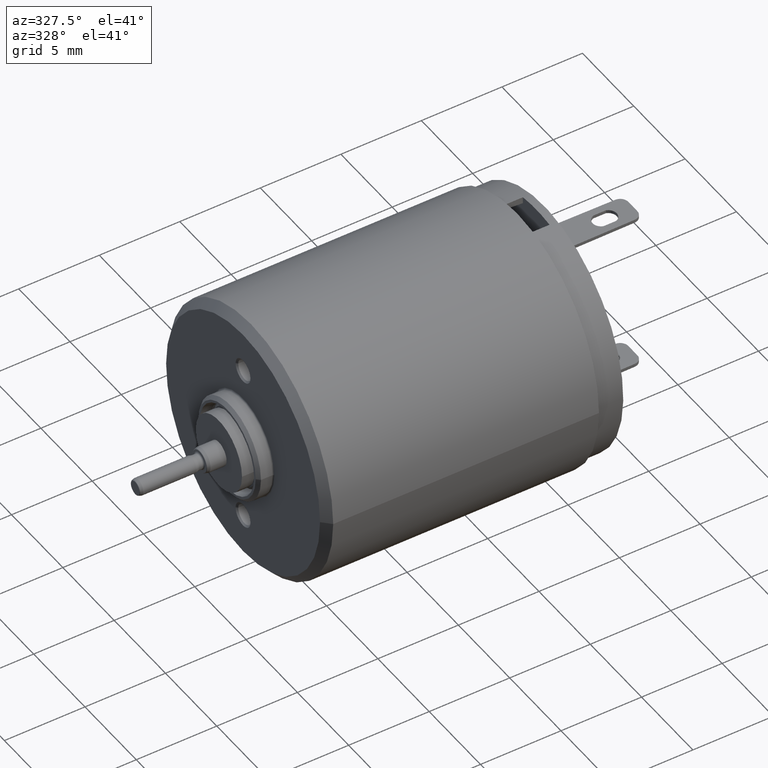
[diagram: clean part render]
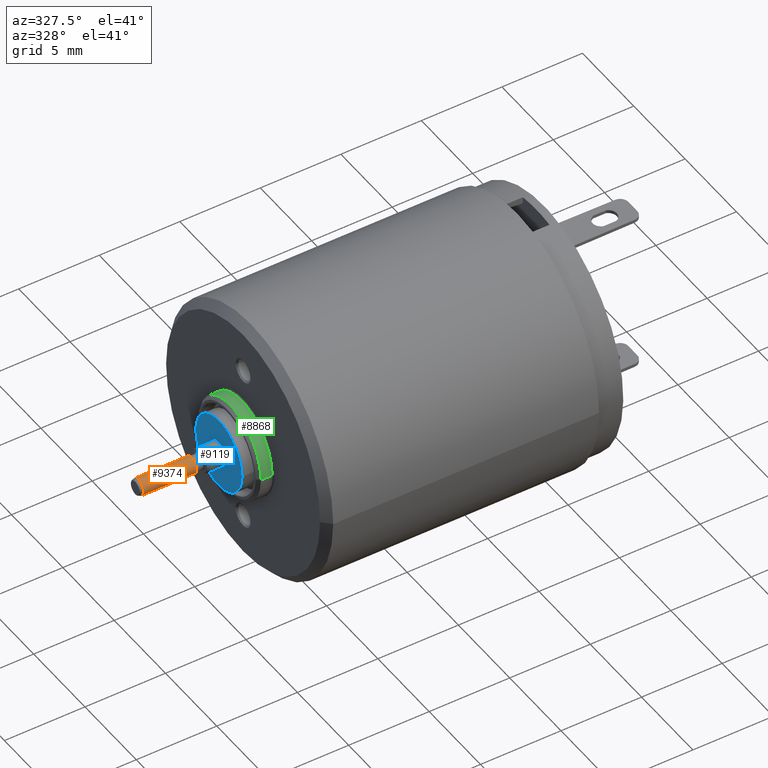
[diagram: same view with three faces highlighted in distinct colors, each labeled with its STEP entity id]
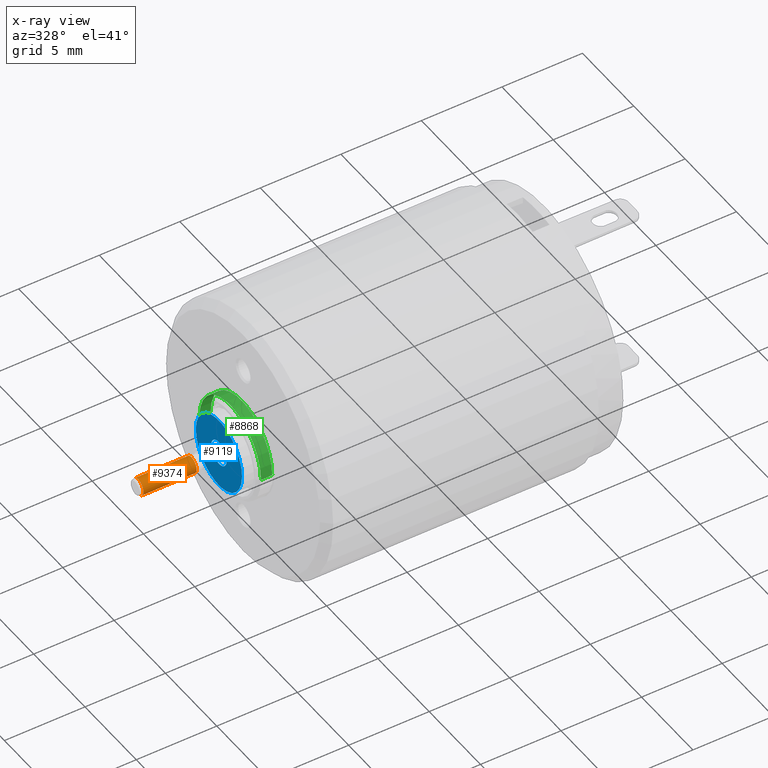
[diagram: x-ray of the same camera — body ghosted, the three highlighted faces saturated]
A machine part, auxiliary view with three faces highlighted in distinct colors.
The next image is the same camera in x-ray (body ghosted, the three faces saturated) — at least one of them is partly hidden behind the body in this view.
Their STEP definitions:

[orange] entity #9374 — the highlighted cylindrical surface (edge-blend (fillet) strip) has radius 0.5 mm, axis along (-1, 0, 0).
#1496=CARTESIAN_POINT('',(-2.02E1,1.472025452584E-14,0.E0));
#1497=DIRECTION('',(1.E0,0.E0,0.E0));
#1498=DIRECTION('',(0.E0,5.E-1,8.660254037844E-1));
#1499=AXIS2_PLACEMENT_3D('',#1496,#1497,#1498);
#1501=DIRECTION('',(1.E0,3.212839903136E-14,5.381906026598E-14));
#1502=VECTOR('',#1501,3.302672052690E0);
#1503=CARTESIAN_POINT('',(-2.350267205269E1,-2.5E-1,-4.330127018922E-1));
#1504=LINE('',#1503,#1502);
#1510=DIRECTION('',(-1.E0,3.193510759068E-14,5.133148346418E-14));
#1511=VECTOR('',#1510,3.302672052690E0);
#1512=CARTESIAN_POINT('',(-2.02E1,2.499999999999E-1,4.330127018921E-1));
#1513=LINE('',#1512,#1511);
#1529=CARTESIAN_POINT('',(-2.350267205269E1,1.512471520155E-14,0.E0));
#1530=DIRECTION('',(1.E0,0.E0,0.E0));
#1531=DIRECTION('',(0.E0,5.E-1,8.660254037844E-1));
#1532=AXIS2_PLACEMENT_3D('',#1529,#1530,#1531);
#6860=CARTESIAN_POINT('',(-2.02E1,-2.5E-1,-4.330127018922E-1));
#6861=CARTESIAN_POINT('',(-2.02E1,2.5E-1,4.330127018922E-1));
#6862=VERTEX_POINT('',#6860);
#6863=VERTEX_POINT('',#6861);
#6864=CARTESIAN_POINT('',(-2.350267205269E1,2.5E-1,4.330127018923E-1));
#6865=CARTESIAN_POINT('',(-2.350267205269E1,-2.5E-1,-4.330127018923E-1));
#6866=VERTEX_POINT('',#6864);
#6867=VERTEX_POINT('',#6865);
#9360=CARTESIAN_POINT('',(-2.013394655895E1,1.471216531232E-14,0.E0));
#9361=DIRECTION('',(-1.E0,0.E0,0.E0));
#9362=DIRECTION('',(0.E0,5.E-1,8.660254037844E-1));
#9363=AXIS2_PLACEMENT_3D('',#9360,#9361,#9362);
#9364=CYLINDRICAL_SURFACE('',#9363,5.E-1);
#9366=ORIENTED_EDGE('',*,*,#9365,.F.);
#9368=ORIENTED_EDGE('',*,*,#9367,.F.);
#9370=ORIENTED_EDGE('',*,*,#9369,.F.);
#9371=ORIENTED_EDGE('',*,*,#9353,.T.);
#9372=EDGE_LOOP('',(#9366,#9368,#9370,#9371));
#9373=FACE_OUTER_BOUND('',#9372,.F.);
#9374=ADVANCED_FACE('',(#9373),#9364,.T.);
#1500=CIRCLE('',#1499,5.E-1);
#1533=CIRCLE('',#1532,5.E-1);
#9353=EDGE_CURVE('',#6863,#6862,#1500,.T.);
#9365=EDGE_CURVE('',#6867,#6862,#1504,.T.);
#9367=EDGE_CURVE('',#6866,#6867,#1533,.T.);
#9369=EDGE_CURVE('',#6863,#6866,#1513,.T.);

[blue] entity #9119 — the highlighted planar face has unit normal (1, 0, 0).
#1324=CARTESIAN_POINT('',(-1.85E1,1.451206456989E-14,0.E0));
#1325=DIRECTION('',(1.E0,0.E0,0.E0));
#1326=DIRECTION('',(0.E0,1.E0,0.E0));
#1327=AXIS2_PLACEMENT_3D('',#1324,#1325,#1326);
#1329=CARTESIAN_POINT('',(-1.85E1,1.451206456989E-14,0.E0));
#1330=DIRECTION('',(1.E0,0.E0,0.E0));
#1331=DIRECTION('',(0.E0,-1.E0,0.E0));
#1332=AXIS2_PLACEMENT_3D('',#1329,#1330,#1331);
#1334=CARTESIAN_POINT('',(-1.85E1,1.451206456997E-14,0.E0));
#1335=DIRECTION('',(-1.E0,0.E0,0.E0));
#1336=DIRECTION('',(0.E0,-5.E-1,-8.660254037844E-1));
#1337=AXIS2_PLACEMENT_3D('',#1334,#1335,#1336);
#1339=CARTESIAN_POINT('',(-1.85E1,1.451206456997E-14,0.E0));
#1340=DIRECTION('',(-1.E0,0.E0,0.E0));
#1341=DIRECTION('',(0.E0,5.000000000001E-1,8.660254037844E-1));
#1342=AXIS2_PLACEMENT_3D('',#1339,#1340,#1341);
#6820=CARTESIAN_POINT('',(-1.85E1,-2.25E0,0.E0));
#6821=VERTEX_POINT('',#6820);
#6822=CARTESIAN_POINT('',(-1.85E1,2.25E0,0.E0));
#6823=VERTEX_POINT('',#6822);
#6824=CARTESIAN_POINT('',(-1.85E1,-3.749999999999E-1,-6.495190528382E-1));
#6825=CARTESIAN_POINT('',(-1.85E1,3.75E-1,6.495190528382E-1));
#6826=VERTEX_POINT('',#6824);
#6827=VERTEX_POINT('',#6825);
#9104=CARTESIAN_POINT('',(-1.85E1,1.509903313490E-14,0.E0));
#9105=DIRECTION('',(1.E0,0.E0,0.E0));
#9106=DIRECTION('',(0.E0,-1.E0,0.E0));
#9107=AXIS2_PLACEMENT_3D('',#9104,#9105,#9106);
#9108=PLANE('',#9107);
#9109=ORIENTED_EDGE('',*,*,#9097,.T.);
#9110=ORIENTED_EDGE('',*,*,#9086,.T.);
#9111=EDGE_LOOP('',(#9109,#9110));
#9112=FACE_OUTER_BOUND('',#9111,.F.);
#9114=ORIENTED_EDGE('',*,*,#9113,.T.);
#9116=ORIENTED_EDGE('',*,*,#9115,.T.);
#9117=EDGE_LOOP('',(#9114,#9116));
#9118=FACE_BOUND('',#9117,.F.);
#9119=ADVANCED_FACE('',(#9112,#9118),#9108,.F.);
#1328=CIRCLE('',#1327,2.25E0);
#1333=CIRCLE('',#1332,2.25E0);
#1338=CIRCLE('',#1337,7.499999999999E-1);
#1343=CIRCLE('',#1342,7.499999999999E-1);
#9086=EDGE_CURVE('',#6821,#6823,#1333,.T.);
#9097=EDGE_CURVE('',#6823,#6821,#1328,.T.);
#9113=EDGE_CURVE('',#6826,#6827,#1338,.T.);
#9115=EDGE_CURVE('',#6827,#6826,#1343,.T.);

[green] entity #8868 — the highlighted cylindrical surface (partial cylindrical patch) has radius 3 mm, axis along (-1, 0, 0).
#1158=CARTESIAN_POINT('',(-1.71E1,1.434061401811E-14,0.E0));
#1159=DIRECTION('',(1.E0,0.E0,0.E0));
#1160=DIRECTION('',(0.E0,1.E0,0.E0));
#1161=AXIS2_PLACEMENT_3D('',#1158,#1159,#1160);
#1163=DIRECTION('',(1.E0,-1.177470819260E-12,0.E0));
#1164=VECTOR('',#1163,6.999999999998E-1);
#1165=CARTESIAN_POINT('',(-1.78E1,-2.999999999999E0,0.E0));
#1166=LINE('',#1165,#1164);
#1172=DIRECTION('',(-1.E0,-8.183929724386E-13,0.E0));
#1173=VECTOR('',#1172,6.999999999995E-1);
#1174=CARTESIAN_POINT('',(-1.71E1,3.E0,0.E0));
#1175=LINE('',#1174,#1173);
#1189=CARTESIAN_POINT('',(-1.78E1,1.442633929397E-14,0.E0));
#1190=DIRECTION('',(1.E0,0.E0,0.E0));
#1191=DIRECTION('',(0.E0,1.E0,0.E0));
#1192=AXIS2_PLACEMENT_3D('',#1189,#1190,#1191);
#6776=CARTESIAN_POINT('',(-1.71E1,-2.999999999999E0,0.E0));
#6777=VERTEX_POINT('',#6776);
#6778=CARTESIAN_POINT('',(-1.71E1,2.999999999999E0,0.E0));
#6779=VERTEX_POINT('',#6778);
#6780=CARTESIAN_POINT('',(-1.78E1,-2.999999999999E0,0.E0));
#6781=VERTEX_POINT('',#6780);
#6782=CARTESIAN_POINT('',(-1.78E1,2.999999999999E0,0.E0));
#6783=VERTEX_POINT('',#6782);
#8854=CARTESIAN_POINT('',(-1.705364024624E1,1.433493658570E-14,0.E0));
#8855=DIRECTION('',(-1.E0,0.E0,0.E0));
#8856=DIRECTION('',(0.E0,1.E0,0.E0));
#8857=AXIS2_PLACEMENT_3D('',#8854,#8855,#8856);
#8858=CYLINDRICAL_SURFACE('',#8857,3.E0);
#8860=ORIENTED_EDGE('',*,*,#8859,.F.);
#8862=ORIENTED_EDGE('',*,*,#8861,.F.);
#8864=ORIENTED_EDGE('',*,*,#8863,.F.);
#8865=ORIENTED_EDGE('',*,*,#8847,.T.);
#8866=EDGE_LOOP('',(#8860,#8862,#8864,#8865));
#8867=FACE_OUTER_BOUND('',#8866,.F.);
#8868=ADVANCED_FACE('',(#8867),#8858,.T.);
#1162=CIRCLE('',#1161,3.E0);
#1193=CIRCLE('',#1192,2.999999999998E0);
#8847=EDGE_CURVE('',#6779,#6777,#1162,.T.);
#8859=EDGE_CURVE('',#6781,#6777,#1166,.T.);
#8861=EDGE_CURVE('',#6783,#6781,#1193,.T.);
#8863=EDGE_CURVE('',#6779,#6783,#1175,.T.);